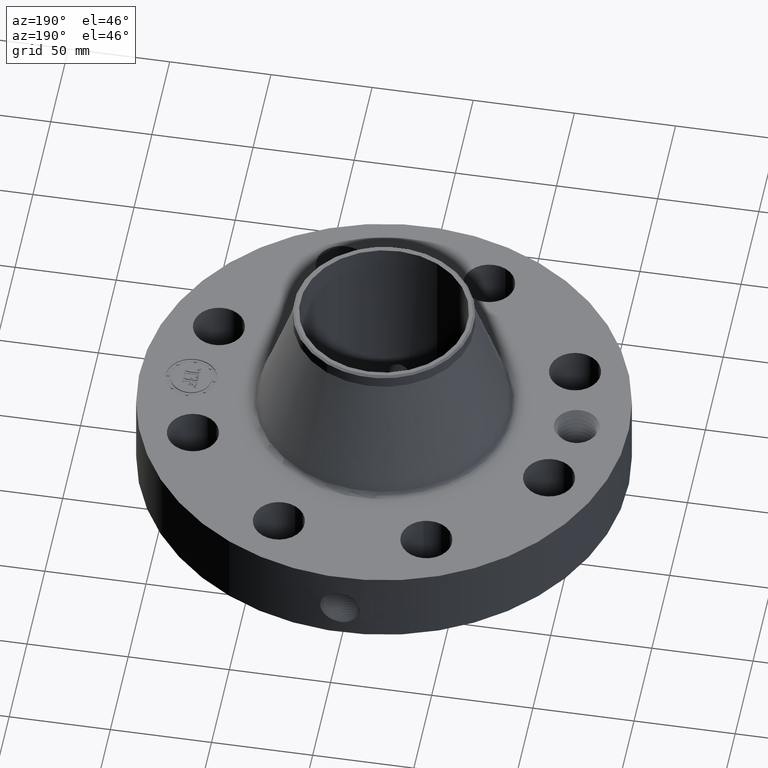
[diagram: clean part render]
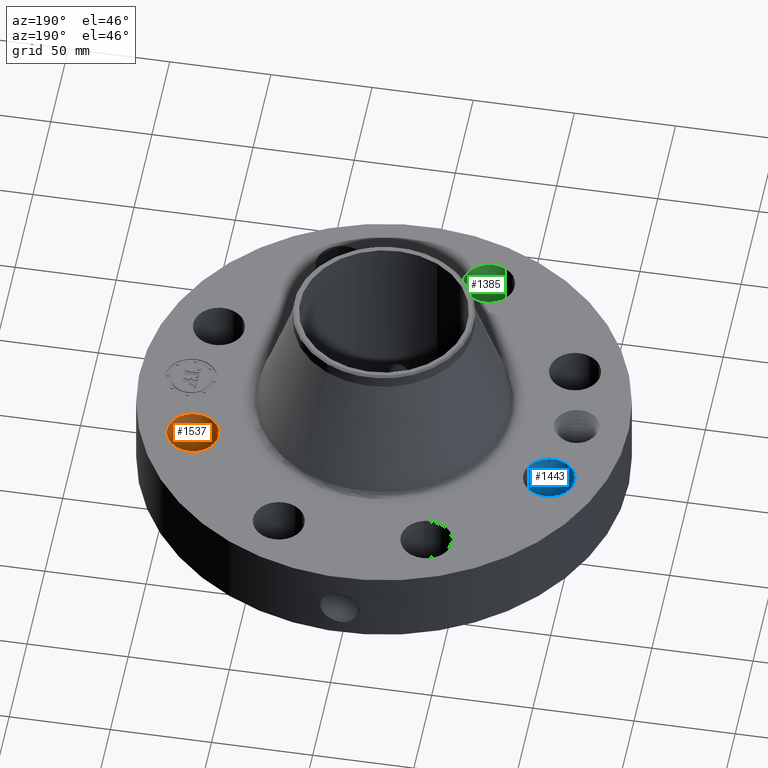
[diagram: same view with three faces highlighted in distinct colors, each labeled with its STEP entity id]
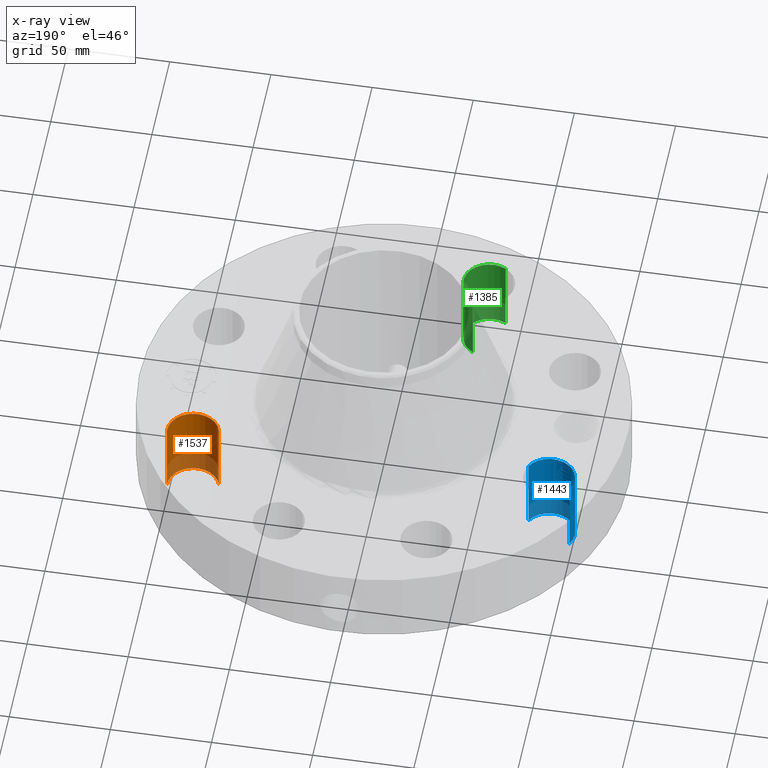
[diagram: x-ray of the same camera — body ghosted, the three highlighted faces saturated]
A machine part, auxiliary view with three faces highlighted in distinct colors.
The next image is the same camera in x-ray (body ghosted, the three faces saturated) — at least one of them is partly hidden behind the body in this view.
Their STEP definitions:

[orange] entity #1537 — the highlighted cylindrical surface (edge-blend (fillet) strip) has radius 12.7 mm, axis along (0, 0, -1).
#365=AXIS2_PLACEMENT_3D('Circle Axis2P3D',#363,#364,$) ;
#661=AXIS2_PLACEMENT_3D('Circle Axis2P3D',#659,#660,$) ;
#1512=AXIS2_PLACEMENT_3D('Cylinder Axis2P3D',#1509,#1510,#1511) ;
#358=CARTESIAN_POINT('Vertex',(2.98477343194,1.2942931058,0.250000000001)) ;
#360=CARTESIAN_POINT('Vertex',(3.94432306193,1.57583263695,0.250000000001)) ;
#363=CARTESIAN_POINT('Axis2P3D Location',(3.46454824693,1.43506287137,0.250000000001)) ;
#659=CARTESIAN_POINT('Axis2P3D Location',(3.46454824693,1.43506287137,1.75000000001)) ;
#663=CARTESIAN_POINT('Vertex',(3.94432306193,1.57583263695,1.75000000001)) ;
#665=CARTESIAN_POINT('Vertex',(2.98477343194,1.2942931058,1.75000000001)) ;
#1509=CARTESIAN_POINT('Axis2P3D Location',(3.46454824693,1.43506287137,1.74606299213)) ;
#1514=CARTESIAN_POINT('Line Origine',(2.98477343194,1.2942931058,1.)) ;
#1519=CARTESIAN_POINT('Line Origine',(3.94432306193,1.57583263695,1.)) ;
#364=DIRECTION('Axis2P3D Direction',(0.,0.,-0.0393700787402)) ;
#660=DIRECTION('Axis2P3D Direction',(0.,0.,-0.0393700787402)) ;
#1510=DIRECTION('Axis2P3D Direction',(0.,0.,-0.0393700787402)) ;
#1511=DIRECTION('Axis2P3D XDirection',(0.0377775444876,0.0110842335096,0.)) ;
#1515=DIRECTION('Vector Direction',(0.,0.,-0.0393700787402)) ;
#1520=DIRECTION('Vector Direction',(0.,0.,-0.0393700787402)) ;
#1516=VECTOR('Line Direction',#1515,0.0393700787402) ;
#1521=VECTOR('Line Direction',#1520,0.0393700787402) ;
#1532=ORIENTED_EDGE('',*,*,#1523,.F.) ;
#1533=ORIENTED_EDGE('',*,*,#367,.T.) ;
#1534=ORIENTED_EDGE('',*,*,#1518,.T.) ;
#1535=ORIENTED_EDGE('',*,*,#667,.F.) ;
#1537=ADVANCED_FACE('PartBody',(#1536),#1513,.F.) ;
#366=CIRCLE('generated circle',#365,0.500000000002) ;
#662=CIRCLE('generated circle',#661,0.500000000002) ;
#1513=CYLINDRICAL_SURFACE('generated cylinder',#1512,0.500000000002) ;
#367=EDGE_CURVE('',#361,#359,#366,.T.) ;
#667=EDGE_CURVE('',#664,#666,#662,.T.) ;
#1518=EDGE_CURVE('',#359,#666,#1517,.F.) ;
#1523=EDGE_CURVE('',#361,#664,#1522,.F.) ;
#1531=EDGE_LOOP('',(#1532,#1533,#1534,#1535)) ;
#1536=FACE_OUTER_BOUND('',#1531,.T.) ;
#1517=LINE('Line',#1514,#1516) ;
#1522=LINE('Line',#1519,#1521) ;
#359=VERTEX_POINT('',#358) ;
#361=VERTEX_POINT('',#360) ;
#664=VERTEX_POINT('',#663) ;
#666=VERTEX_POINT('',#665) ;

[blue] entity #1443 — the highlighted cylindrical surface (edge-blend (fillet) strip) has radius 12.7 mm, axis along (-0, 0, -1).
#302=AXIS2_PLACEMENT_3D('Circle Axis2P3D',#300,#301,$) ;
#616=AXIS2_PLACEMENT_3D('Circle Axis2P3D',#614,#615,$) ;
#1425=AXIS2_PLACEMENT_3D('Cylinder Axis2P3D',#1422,#1423,#1424) ;
#300=CARTESIAN_POINT('Axis2P3D Location',(-3.46454824693,1.43506287137,0.250000000001)) ;
#304=CARTESIAN_POINT('Vertex',(-3.02575696598,1.19535010207,0.250000000001)) ;
#306=CARTESIAN_POINT('Vertex',(-3.90333952788,1.67477564068,0.250000000001)) ;
#609=CARTESIAN_POINT('Vertex',(-3.90333952788,1.67477564068,1.75000000001)) ;
#611=CARTESIAN_POINT('Vertex',(-3.02575696598,1.19535010207,1.75000000001)) ;
#614=CARTESIAN_POINT('Axis2P3D Location',(-3.46454824693,1.43506287137,1.75000000001)) ;
#1422=CARTESIAN_POINT('Axis2P3D Location',(-3.46454824693,1.43506287137,1.74606299213)) ;
#1427=CARTESIAN_POINT('Line Origine',(-3.02575696598,1.19535010207,1.)) ;
#1432=CARTESIAN_POINT('Line Origine',(-3.90333952788,1.67477564068,1.)) ;
#301=DIRECTION('Axis2P3D Direction',(0.,0.,-0.0393700787402)) ;
#615=DIRECTION('Axis2P3D Direction',(0.,0.,-0.0393700787402)) ;
#1423=DIRECTION('Axis2P3D Direction',(-0.,0.,-0.0393700787402)) ;
#1424=DIRECTION('Axis2P3D XDirection',(-0.0345504945626,0.0188750212049,0.)) ;
#1428=DIRECTION('Vector Direction',(0.,0.,-0.0393700787402)) ;
#1433=DIRECTION('Vector Direction',(0.,0.,-0.0393700787402)) ;
#1429=VECTOR('Line Direction',#1428,0.0393700787402) ;
#1434=VECTOR('Line Direction',#1433,0.0393700787402) ;
#1438=ORIENTED_EDGE('',*,*,#1431,.F.) ;
#1439=ORIENTED_EDGE('',*,*,#308,.T.) ;
#1440=ORIENTED_EDGE('',*,*,#1436,.T.) ;
#1441=ORIENTED_EDGE('',*,*,#618,.F.) ;
#1443=ADVANCED_FACE('PartBody',(#1442),#1426,.F.) ;
#303=CIRCLE('generated circle',#302,0.500000000002) ;
#617=CIRCLE('generated circle',#616,0.500000000002) ;
#1426=CYLINDRICAL_SURFACE('generated cylinder',#1425,0.500000000002) ;
#308=EDGE_CURVE('',#305,#307,#303,.T.) ;
#618=EDGE_CURVE('',#612,#610,#617,.T.) ;
#1431=EDGE_CURVE('',#305,#612,#1430,.F.) ;
#1436=EDGE_CURVE('',#307,#610,#1435,.F.) ;
#1437=EDGE_LOOP('',(#1438,#1439,#1440,#1441)) ;
#1442=FACE_OUTER_BOUND('',#1437,.T.) ;
#1430=LINE('Line',#1427,#1429) ;
#1435=LINE('Line',#1432,#1434) ;
#305=VERTEX_POINT('',#304) ;
#307=VERTEX_POINT('',#306) ;
#610=VERTEX_POINT('',#609) ;
#612=VERTEX_POINT('',#611) ;

[green] entity #1385 — the highlighted cylindrical surface (edge-blend (fillet) strip) has radius 12.7 mm, axis along (0, -0, -1).
#266=AXIS2_PLACEMENT_3D('Circle Axis2P3D',#264,#265,$) ;
#580=AXIS2_PLACEMENT_3D('Circle Axis2P3D',#578,#579,$) ;
#1367=AXIS2_PLACEMENT_3D('Cylinder Axis2P3D',#1364,#1365,#1366) ;
#264=CARTESIAN_POINT('Axis2P3D Location',(-1.43506287137,-3.46454824693,0.250000000001)) ;
#268=CARTESIAN_POINT('Vertex',(-1.19535010207,-3.02575696598,0.250000000001)) ;
#270=CARTESIAN_POINT('Vertex',(-1.67477564068,-3.90333952788,0.250000000001)) ;
#573=CARTESIAN_POINT('Vertex',(-1.67477564068,-3.90333952788,1.75000000001)) ;
#575=CARTESIAN_POINT('Vertex',(-1.19535010207,-3.02575696598,1.75000000001)) ;
#578=CARTESIAN_POINT('Axis2P3D Location',(-1.43506287137,-3.46454824693,1.75000000001)) ;
#1364=CARTESIAN_POINT('Axis2P3D Location',(-1.43506287137,-3.46454824693,1.74606299213)) ;
#1369=CARTESIAN_POINT('Line Origine',(-1.19535010207,-3.02575696598,1.)) ;
#1374=CARTESIAN_POINT('Line Origine',(-1.67477564068,-3.90333952788,1.)) ;
#265=DIRECTION('Axis2P3D Direction',(0.,0.,-0.0393700787402)) ;
#579=DIRECTION('Axis2P3D Direction',(0.,0.,-0.0393700787402)) ;
#1365=DIRECTION('Axis2P3D Direction',(0.,-0.,-0.0393700787402)) ;
#1366=DIRECTION('Axis2P3D XDirection',(-0.0188750212049,-0.0345504945626,0.)) ;
#1370=DIRECTION('Vector Direction',(0.,0.,-0.0393700787402)) ;
#1375=DIRECTION('Vector Direction',(0.,0.,-0.0393700787402)) ;
#1371=VECTOR('Line Direction',#1370,0.0393700787402) ;
#1376=VECTOR('Line Direction',#1375,0.0393700787402) ;
#1380=ORIENTED_EDGE('',*,*,#1373,.F.) ;
#1381=ORIENTED_EDGE('',*,*,#272,.T.) ;
#1382=ORIENTED_EDGE('',*,*,#1378,.T.) ;
#1383=ORIENTED_EDGE('',*,*,#582,.F.) ;
#1385=ADVANCED_FACE('PartBody',(#1384),#1368,.F.) ;
#267=CIRCLE('generated circle',#266,0.500000000002) ;
#581=CIRCLE('generated circle',#580,0.500000000002) ;
#1368=CYLINDRICAL_SURFACE('generated cylinder',#1367,0.500000000002) ;
#272=EDGE_CURVE('',#269,#271,#267,.T.) ;
#582=EDGE_CURVE('',#576,#574,#581,.T.) ;
#1373=EDGE_CURVE('',#269,#576,#1372,.F.) ;
#1378=EDGE_CURVE('',#271,#574,#1377,.F.) ;
#1379=EDGE_LOOP('',(#1380,#1381,#1382,#1383)) ;
#1384=FACE_OUTER_BOUND('',#1379,.T.) ;
#1372=LINE('Line',#1369,#1371) ;
#1377=LINE('Line',#1374,#1376) ;
#269=VERTEX_POINT('',#268) ;
#271=VERTEX_POINT('',#270) ;
#574=VERTEX_POINT('',#573) ;
#576=VERTEX_POINT('',#575) ;